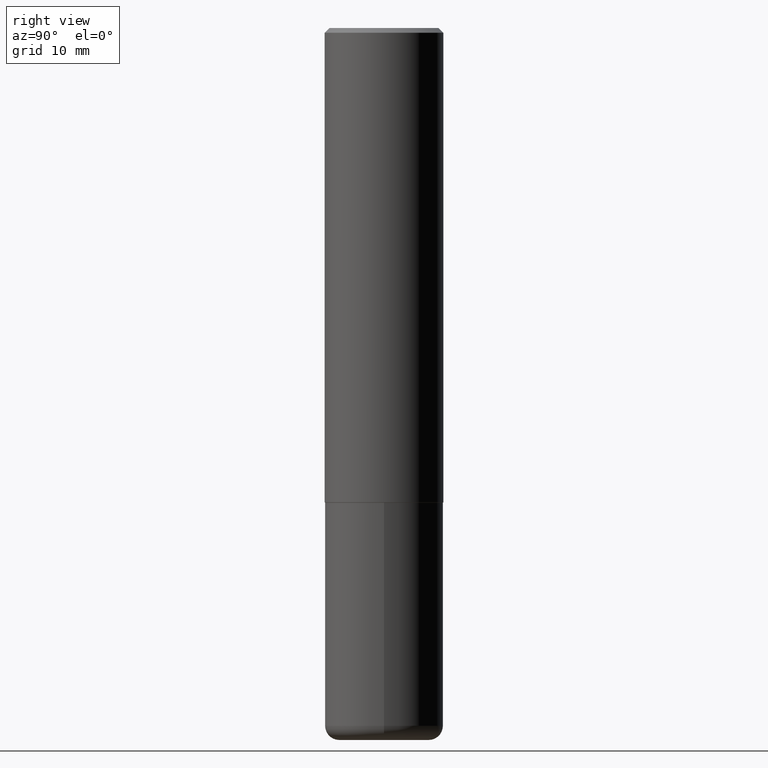
[diagram: clean part render]
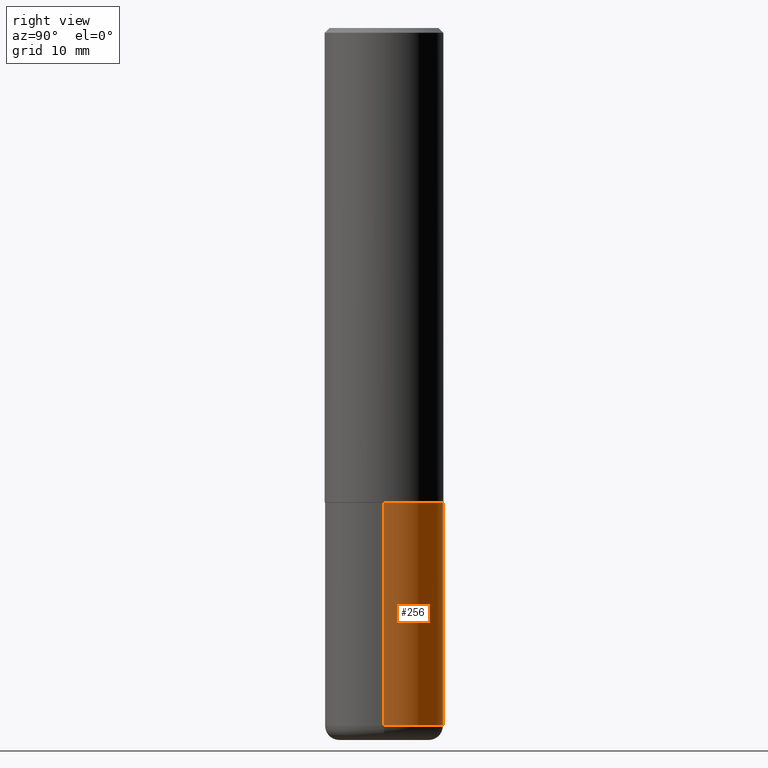
[diagram: same view with one face highlighted and labeled with its STEP entity id]
A machine part, right view. The second image highlights one B-rep face of the part: STEP entity #256.
In plain terms, the highlighted cylindrical surface (partial cylindrical patch) has radius 6.35 mm, axis along (-0, 0, 1).
Its self-contained STEP definition (entity closure, byte-faithful):
#6 = EDGE_CURVE ( 'NONE', #146, #144, #252, .T. ) ;
#27 = EDGE_CURVE ( 'NONE', #144, #204, #44, .T. ) ;
#28 = AXIS2_PLACEMENT_3D ( 'NONE', #310, #406, #43 ) ;
#31 = CARTESIAN_POINT ( 'NONE',  ( 0.2500000000000000000, -1.745740669421566678E-15, 1.219044193948983948E-29 ) ) ;
#34 = DIRECTION ( 'NONE',  ( -2.445468806185136597E-29, 3.491481338843145583E-15, 1.000000000000000000 ) ) ;
#37 = EDGE_CURVE ( 'NONE', #132, #204, #188, .T. ) ;
#43 = DIRECTION ( 'NONE',  ( 1.000000000000000000, -6.982962677686262766E-15, 0.000000000000000000 ) ) ;
#44 = CIRCLE ( 'NONE', #254, 0.2500000000000000000 ) ;
#62 = DIRECTION ( 'NONE',  ( 1.000000000000000000, -6.982962677686266711E-15, 0.000000000000000000 ) ) ;
#94 = CYLINDRICAL_SURFACE ( 'NONE', #295, 0.2500000000000000000 ) ;
#101 = VECTOR ( 'NONE', #322, 39.37007874015748143 ) ;
#121 = EDGE_LOOP ( 'NONE', ( #386, #265, #273, #156 ) ) ;
#122 = DIRECTION ( 'NONE',  ( 1.000000000000000000, -6.982962677686266711E-15, 4.876176775795935793E-29 ) ) ;
#132 = VERTEX_POINT ( 'NONE', #241 ) ;
#144 = VERTEX_POINT ( 'NONE', #237 ) ;
#146 = VERTEX_POINT ( 'NONE', #232 ) ;
#149 = CARTESIAN_POINT ( 'NONE',  ( 0.000000000000000000, 0.000000000000000000, 0.000000000000000000 ) ) ;
#156 = ORIENTED_EDGE ( 'NONE', *, *, #6, .F. ) ;
#188 = LINE ( 'NONE', #291, #101 ) ;
#198 = EDGE_CURVE ( 'NONE', #146, #132, #255, .T. ) ;
#204 = VERTEX_POINT ( 'NONE', #335 ) ;
#221 = DIRECTION ( 'NONE',  ( -2.445468806185136877E-29, 3.491481338843145188E-15, 1.000000000000000000 ) ) ;
#232 = CARTESIAN_POINT ( 'NONE',  ( 0.2499999999999998335, -1.201069580562041471E-14, -2.940000000000000391 ) ) ;
#237 = CARTESIAN_POINT ( 'NONE',  ( 0.2500000000000000000, -8.728703347107858632E-15, -2.000000000000000444 ) ) ;
#241 = CARTESIAN_POINT ( 'NONE',  ( -0.2499999999999998335, -8.488598296798600727E-15, -2.940000000000000391 ) ) ;
#252 = LINE ( 'NONE', #31, #278 ) ;
#254 = AXIS2_PLACEMENT_3D ( 'NONE', #283, #350, #62 ) ;
#255 = CIRCLE ( 'NONE', #28, 0.2500000000000000000 ) ;
#256 = ADVANCED_FACE ( 'NONE', ( #281 ), #94, .T. ) ;
#265 = ORIENTED_EDGE ( 'NONE', *, *, #37, .T. ) ;
#273 = ORIENTED_EDGE ( 'NONE', *, *, #27, .F. ) ;
#278 = VECTOR ( 'NONE', #221, 39.37007874015748143 ) ;
#281 = FACE_OUTER_BOUND ( 'NONE', #121, .T. ) ;
#283 = CARTESIAN_POINT ( 'NONE',  ( 4.890937612370273754E-29, -6.982962677686291954E-15, -2.000000000000000444 ) ) ;
#291 = CARTESIAN_POINT ( 'NONE',  ( -0.2500000000000000000, 1.776356839400250465E-15, -1.229733772563726445E-29 ) ) ;
#295 = AXIS2_PLACEMENT_3D ( 'NONE', #149, #34, #122 ) ;
#310 = CARTESIAN_POINT ( 'NONE',  ( 7.189678290184301639E-29, -1.026495513619884961E-14, -2.940000000000000391 ) ) ;
#322 = DIRECTION ( 'NONE',  ( -2.445468806185136877E-29, 3.491481338843145188E-15, 1.000000000000000000 ) ) ;
#335 = CARTESIAN_POINT ( 'NONE',  ( -0.2500000000000000000, -6.847602067542319531E-15, -2.000000000000000444 ) ) ;
#350 = DIRECTION ( 'NONE',  ( -2.445468806185136597E-29, 3.491481338843145583E-15, 1.000000000000000000 ) ) ;
#386 = ORIENTED_EDGE ( 'NONE', *, *, #198, .T. ) ;
#406 = DIRECTION ( 'NONE',  ( -2.445468806185136597E-29, 3.491481338843145583E-15, 1.000000000000000000 ) ) ;